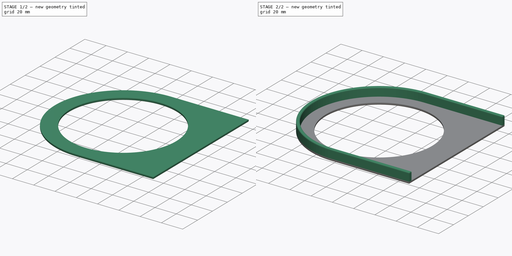
[diagram: build sequence overview — one tinted view per stage of 2, left to right]
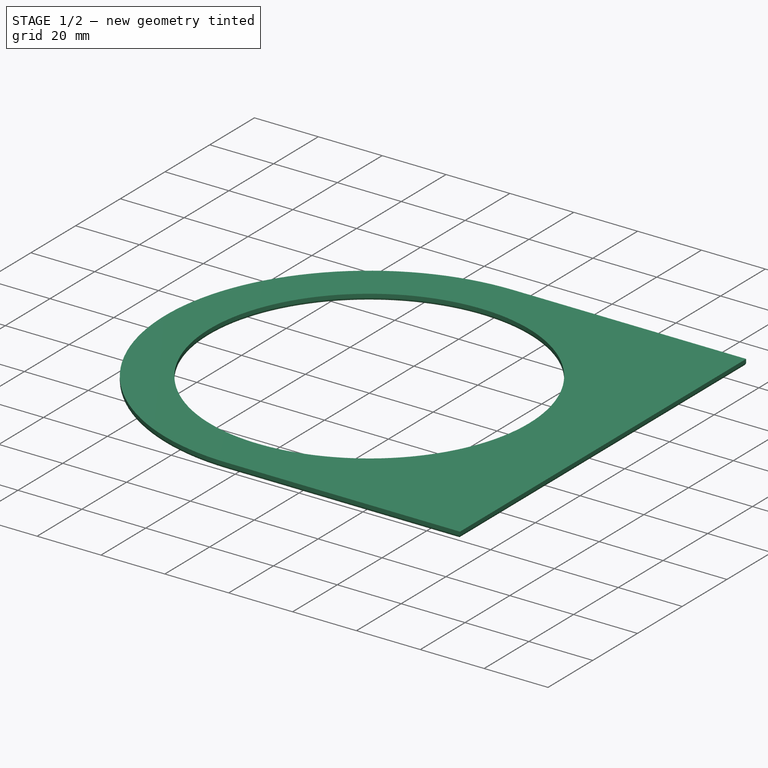
[diagram: stage 1 of 2 — iso view after this stage's code; geometry added in this stage tinted green]
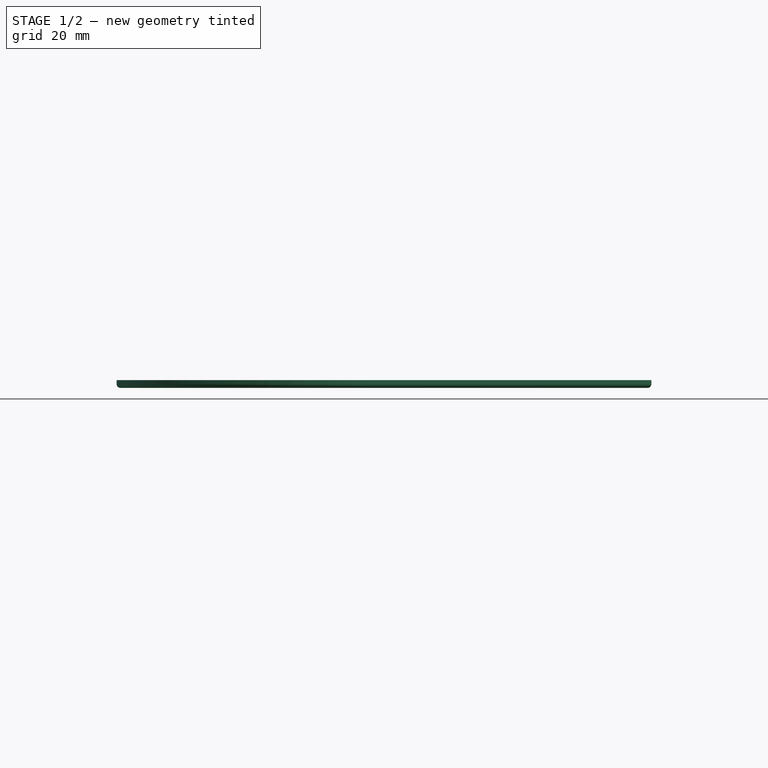
[diagram: stage 1 of 2 — front view after this stage's code; geometry added in this stage tinted green]
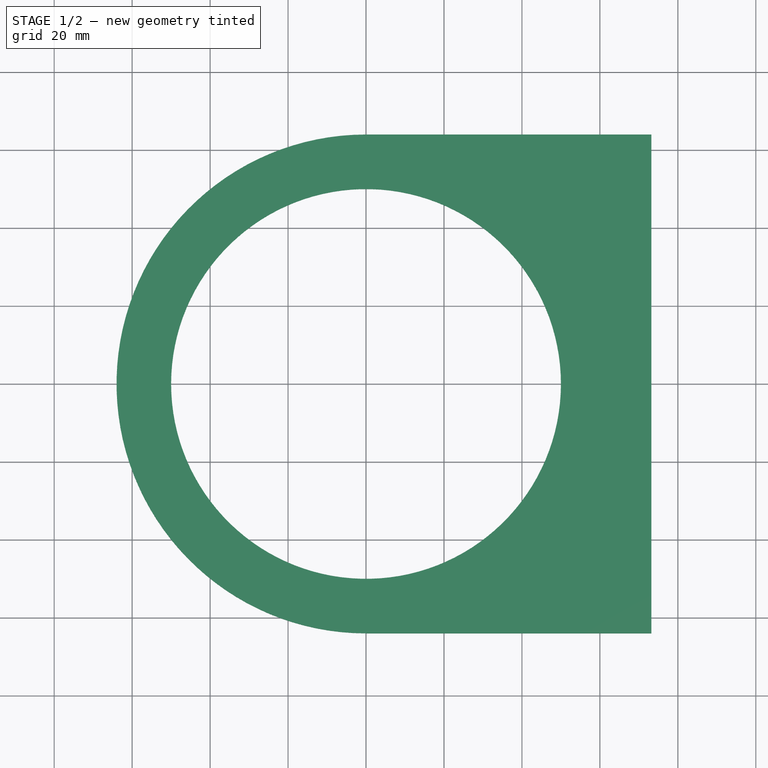
[diagram: stage 1 of 2 — top view after this stage's code; geometry added in this stage tinted green]
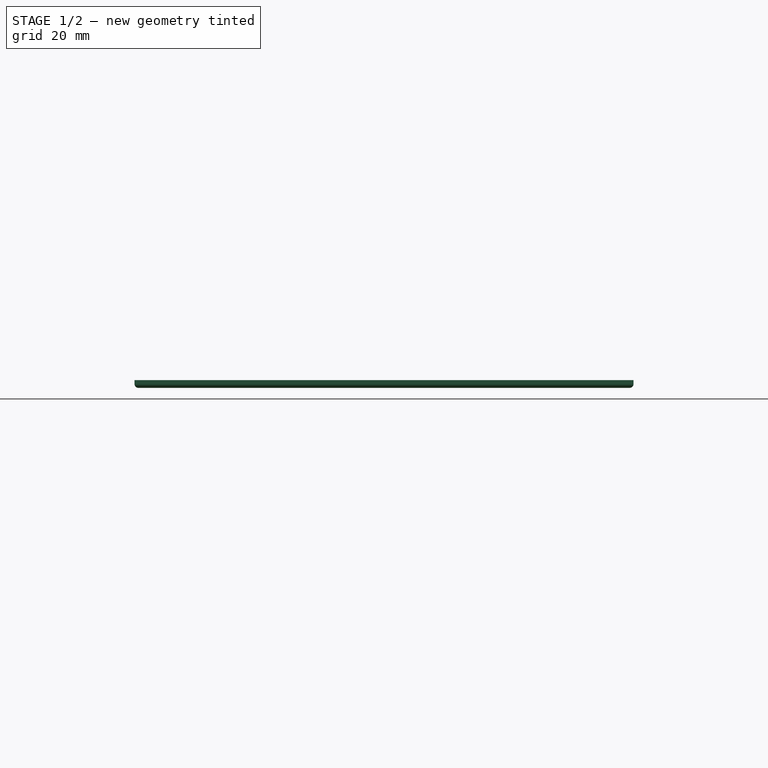
[diagram: stage 1 of 2 — right view after this stage's code; geometry added in this stage tinted green]
FCSTD DOCUMENT  (FreeCAD 0.16R)
Label: chainguard25TL
License: All rights reserved
LicenseURL: http://en.wikipedia.org/wiki/All_rights_reserved
objects: Sketcher::SketchObject×4, PartDesign::Pad×2, PartDesign::Fillet×2
note: 10 computed .brp shape members not serialized (recipe doc carries the construction recipe); baked Part::Feature solids carry a one-line shape summary decoded from their .brp

FEATURE [Sketcher::SketchObject] Sketch
  sketch-geometry (9):
    g0: LineSegment StartX=-15.2607 StartY=56.8971 StartZ=0 EndX=59.9751 EndY=56.8971 EndZ=0
    g1: LineSegment StartX=4.50889e-07 StartY=-1.68106e-06 StartZ=0 EndX=50.9708 EndY=-55.3391 EndZ=0
    g2: LineSegment StartX=64.8657 StartY=53.8004 StartZ=0 EndX=64.8657 EndY=43.1508 EndZ=0
    g3: ArcOfCircle CenterX=-26.34 CenterY=26.3598 CenterZ=0 NormalX=0 NormalY=0 NormalZ=1 Radius=37.2644 StartAngle=1.31941 EndAngle=5.49741
    g4: Circle CenterX=-26.34 CenterY=26.3598 CenterZ=0 NormalX=0 NormalY=0 NormalZ=1 Radius=50
    g5: ArcOfCircle CenterX=55.0555 CenterY=53.518 CenterZ=0 NormalX=0 NormalY=0 NormalZ=1 Radius=10 StartAngle=0 EndAngle=1.5708
    g6: ArcOfCircle CenterX=55.3227 CenterY=-53.5799 CenterZ=0 NormalX=0 NormalY=0 NormalZ=1 Radius=10 StartAngle=4.78407 EndAngle=6.20022
    g7: ArcOfCircle CenterX=127.618 CenterY=0 CenterZ=0 NormalX=0 NormalY=0 NormalZ=1 Radius=76.1563 StartAngle=2.53921 EndAngle=3.7537
    g8: LineSegment StartX=65.2883 StartY=-43.759 StartZ=0 EndX=65.2883 EndY=-54.4086 EndZ=0
  constraints (10):
    c: Horizontal(g0)
    c: Equal(g1,g0)
    c: Coincident(g1,g3)
    c: Coincident(g4,g3)
    c: PointOnObject(g7,g-1)
    c: Coincident(g2,g7)
    c: Coincident(g8,g7)
    c: Vertical(g8)
    c: Vertical(g2)
    c: Symmetric(g1,g-1,g0)
FEATURE [Sketcher::SketchObject] Sketch001
  sketch-geometry (5):
    g0: LineSegment StartX=73.2073 StartY=64 StartZ=0 EndX=-2.4e-11 EndY=64 EndZ=0
    g1: LineSegment StartX=73.2073 StartY=-64 StartZ=0 EndX=3e-12 EndY=-64 EndZ=0
    g2: ArcOfCircle CenterX=-7.71025e-07 CenterY=0 CenterZ=0 NormalX=0 NormalY=0 NormalZ=1 Radius=64 StartAngle=1.5708 EndAngle=4.71239
    g3: LineSegment StartX=73.2073 StartY=64 StartZ=0 EndX=73.2073 EndY=-64 EndZ=0
    g4: Circle CenterX=0 CenterY=0 CenterZ=0 NormalX=0 NormalY=0 NormalZ=1 Radius=50
  constraints (13):
    c: Horizontal(g0)
    c: Horizontal(g1)
    c: Coincident(g2,g1)
    c: Coincident(g0,g2)
    c: DistanceX(g1,g0) = 0
    c: Equal(g0,g1)
    c: DistanceY(g1,g0) = 128
    c: Radius(g2) = 64
    c: Vertical(g3)
    c: Coincident(g1,g3)
    c: Symmetric(g1,g0,g-1)
    c: Radius(g4) = 50
    c: Coincident(g4,g-1)
FEATURE [PartDesign::Pad] Pad  label="Faceplate"
  Length = 2
  Length2 = 100
  Reversed = true
  Sketch = -> Sketch001
  Type = 0
FEATURE [PartDesign::Fillet] Fillet001  label="Fillet_face"
  Base = -> Pad [Edge4,Edge7,Edge10,Edge12,Edge15]
  Radius = 1
FEATURE [Sketcher::SketchObject] Sketch003
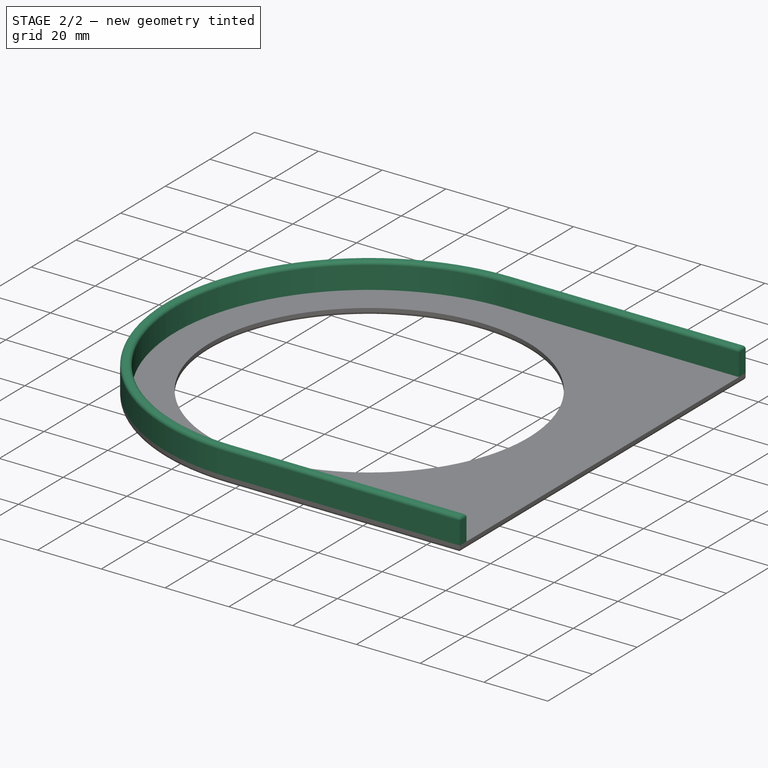
[diagram: stage 2 of 2 — iso view after this stage's code; geometry added in this stage tinted green]
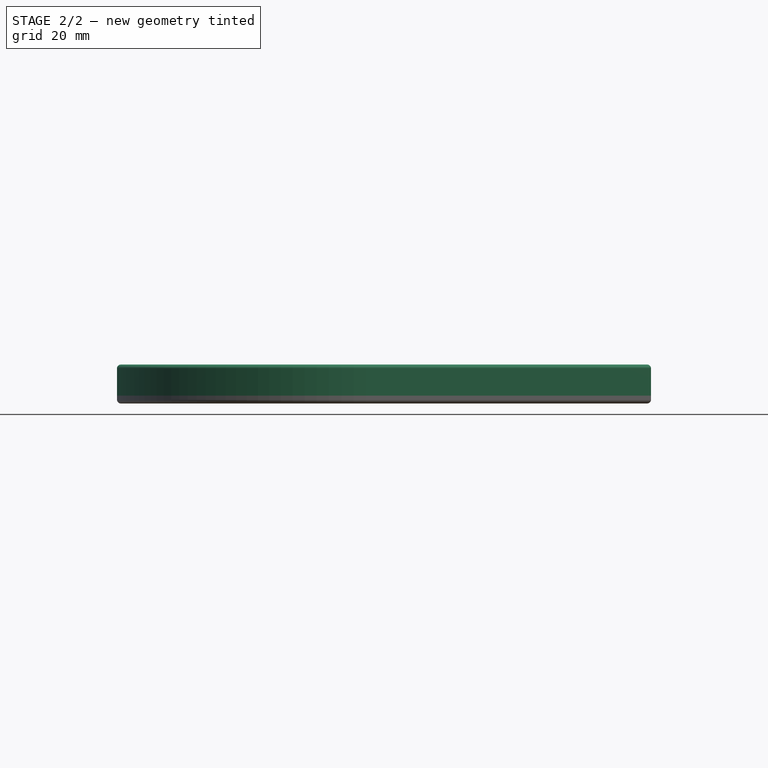
[diagram: stage 2 of 2 — front view after this stage's code; geometry added in this stage tinted green]
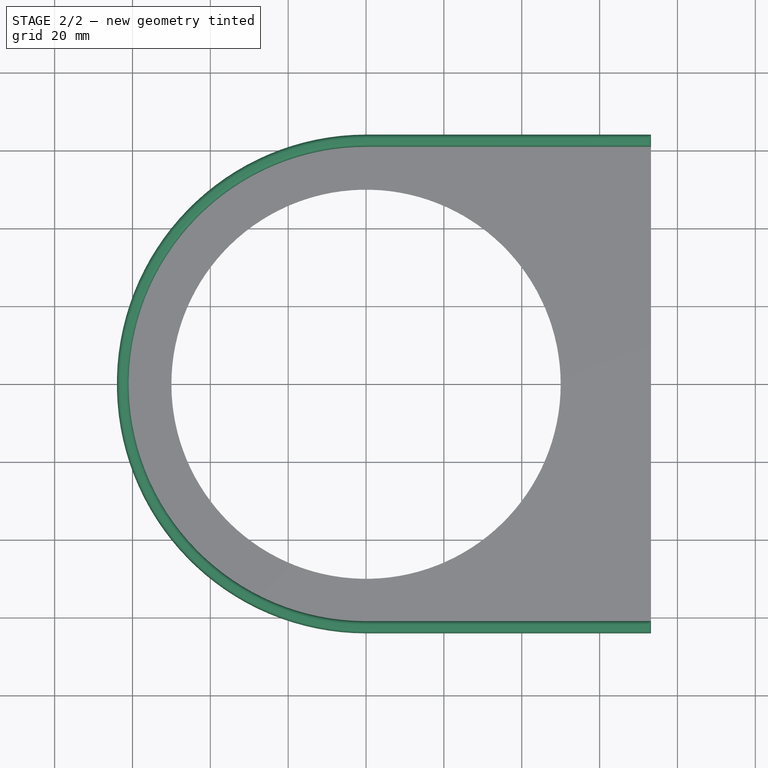
[diagram: stage 2 of 2 — top view after this stage's code; geometry added in this stage tinted green]
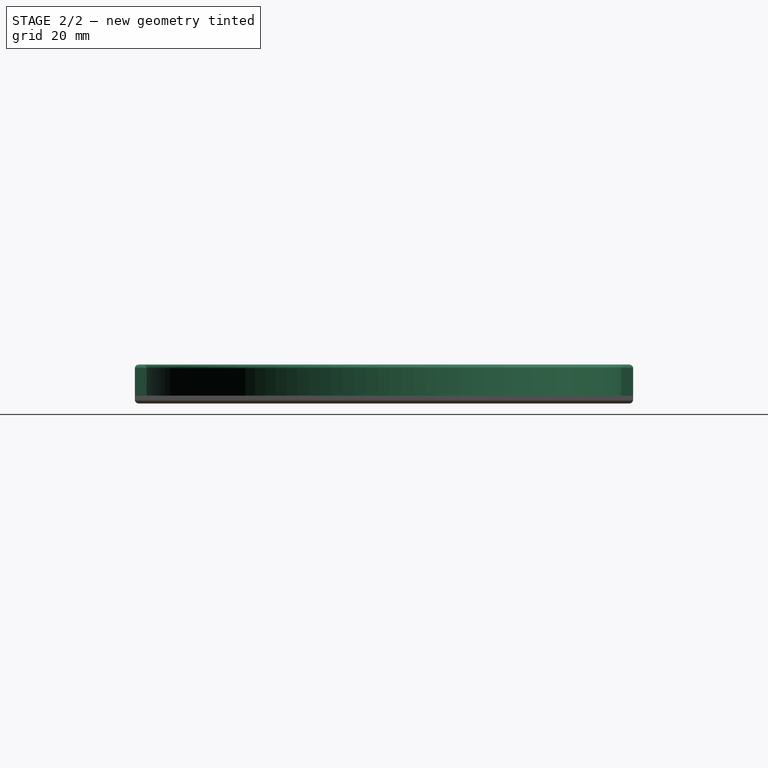
[diagram: stage 2 of 2 — right view after this stage's code; geometry added in this stage tinted green]
FEATURE [Sketcher::SketchObject] Sketch002
  sketch-geometry (8):
    g0: LineSegment StartX=73.202 StartY=64 StartZ=0 EndX=0 EndY=64 EndZ=0
    g1: LineSegment StartX=73.202 StartY=-64 StartZ=0 EndX=0 EndY=-64 EndZ=0
    g2: ArcOfCircle CenterX=3.13138e-06 CenterY=0 CenterZ=0 NormalX=0 NormalY=0 NormalZ=1 Radius=64 StartAngle=1.5708 EndAngle=4.71239
    g3: LineSegment StartX=0 StartY=61 StartZ=0 EndX=73.202 EndY=61 EndZ=0
    g4: LineSegment StartX=0 StartY=-61 StartZ=0 EndX=73.202 EndY=-61 EndZ=0
    g5: LineSegment StartX=73.202 StartY=64 StartZ=0 EndX=73.202 EndY=61 EndZ=0
    g6: LineSegment StartX=73.202 StartY=-61 StartZ=0 EndX=73.202 EndY=-64 EndZ=0
    g7: ArcOfCircle CenterX=-7.37069e-05 CenterY=0 CenterZ=0 NormalX=0 NormalY=0 NormalZ=1 Radius=61 StartAngle=1.5708 EndAngle=4.71239
  constraints (25):
    c: Horizontal(g0)
    c: Horizontal(g1)
    c: Coincident(g2,g1)
    c: Coincident(g0,g2)
    c: DistanceX(g1,g0) = 0
    c: Equal(g0,g1)
    c: DistanceY(g1,g0) = 128
    c: Radius(g2) = 64
    c: Symmetric(g1,g0,g-1)
    c: Radius(g7) = 61
    c: Parallel(g0,g3)
    c: DistanceY(g3,g0) = 3
    c: DistanceY(g1,g4) = 3
    c: Parallel(g4,g1)
    c: DistanceX(g0,g3) = 0
    c: DistanceX(g4) = 0
    c: DistanceX(g0) = 73.202
    c: Equal(g3,g0)
    c: Equal(g4,g0)
    c: Coincident(g4,g6)
    c: Coincident(g6,g1)
    c: Coincident(g5,g3)
    c: Coincident(g5,g0)
    c: Coincident(g7,g3)
    c: Coincident(g7,g4)
FEATURE [PartDesign::Pad] Pad001  label="Connector"
  Length = 8
  Length2 = 100
  Sketch = -> Sketch002
  Type = 0
FEATURE [PartDesign::Fillet] Fillet  label="Fisset_inside"
  Base = -> Pad001 [Edge4,Edge7,Edge10,Edge13,Edge16,Edge19,Edge22,Edge24]
  Radius = 1
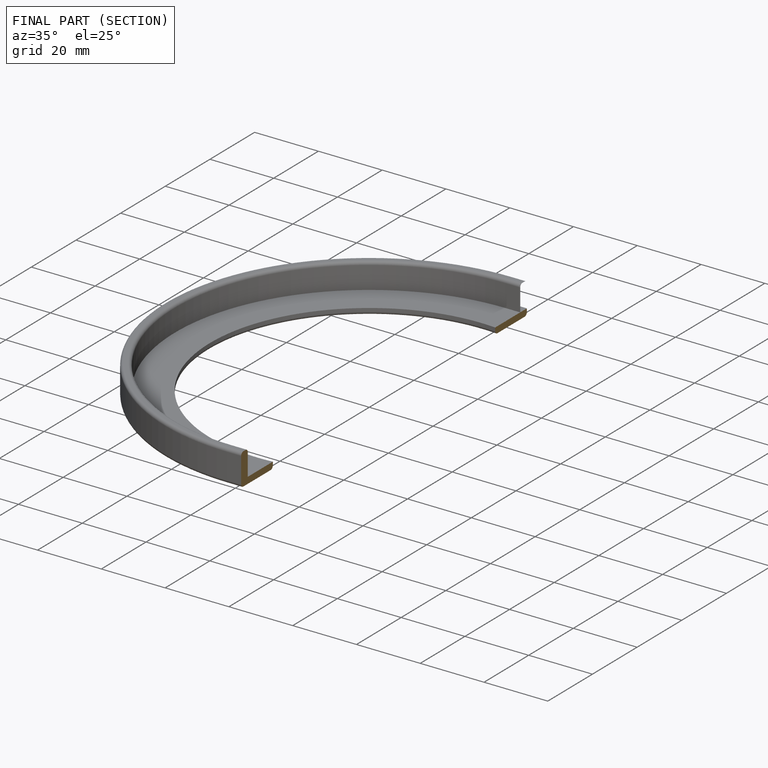
[diagram: finished part — half-section view (interior)]
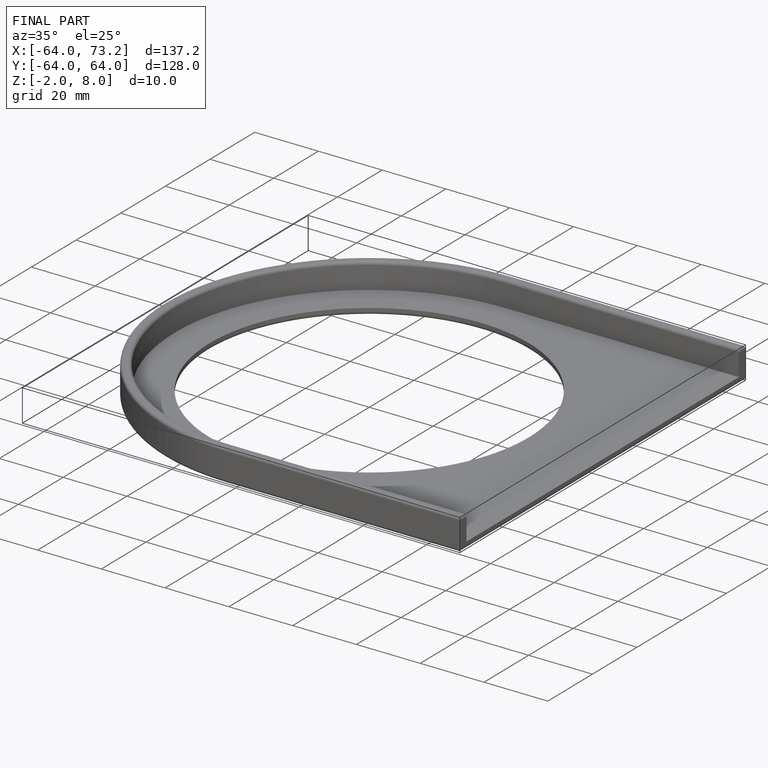
[diagram: finished part — iso view with bounding-box wireframe]
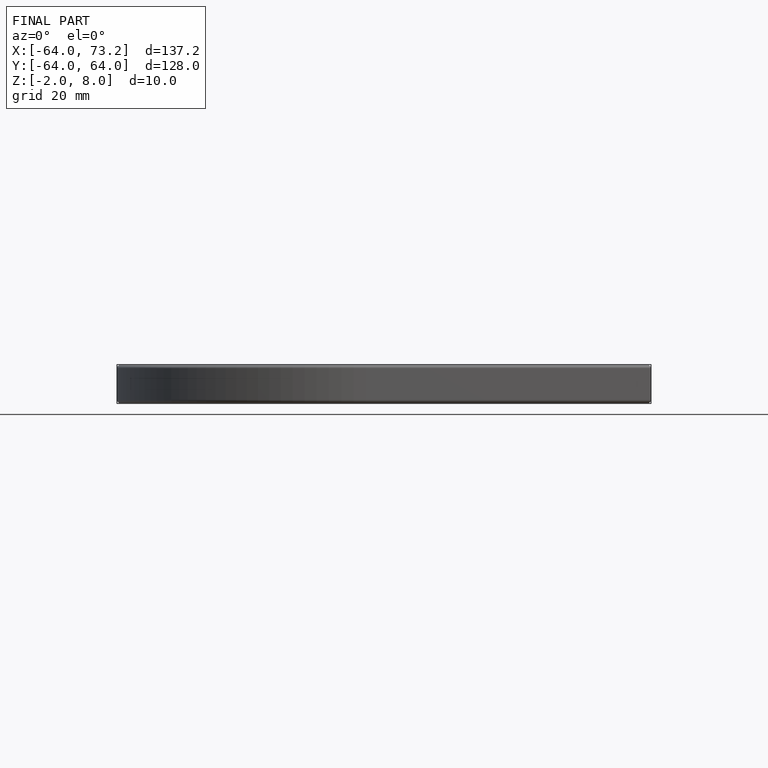
[diagram: finished part — front view with bounding-box wireframe]
